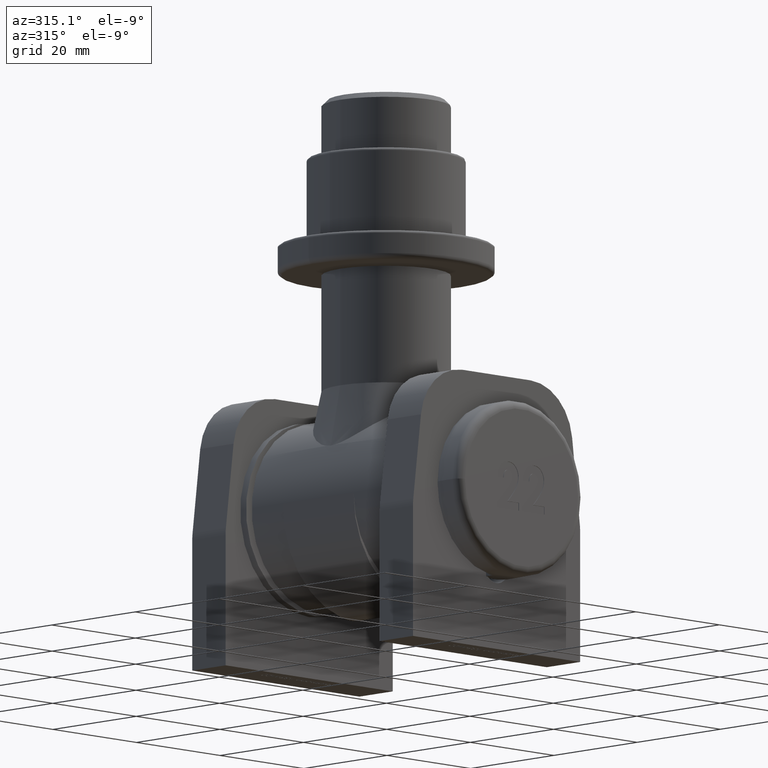
[diagram: clean part render]
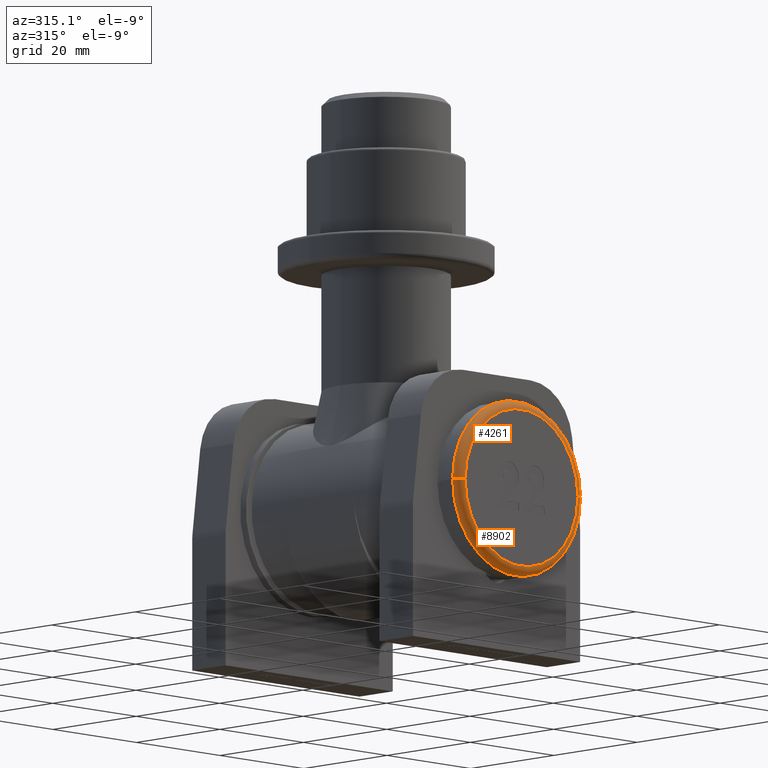
[diagram: same view with one multi-face feature highlighted, each face labeled with its STEP entity id]
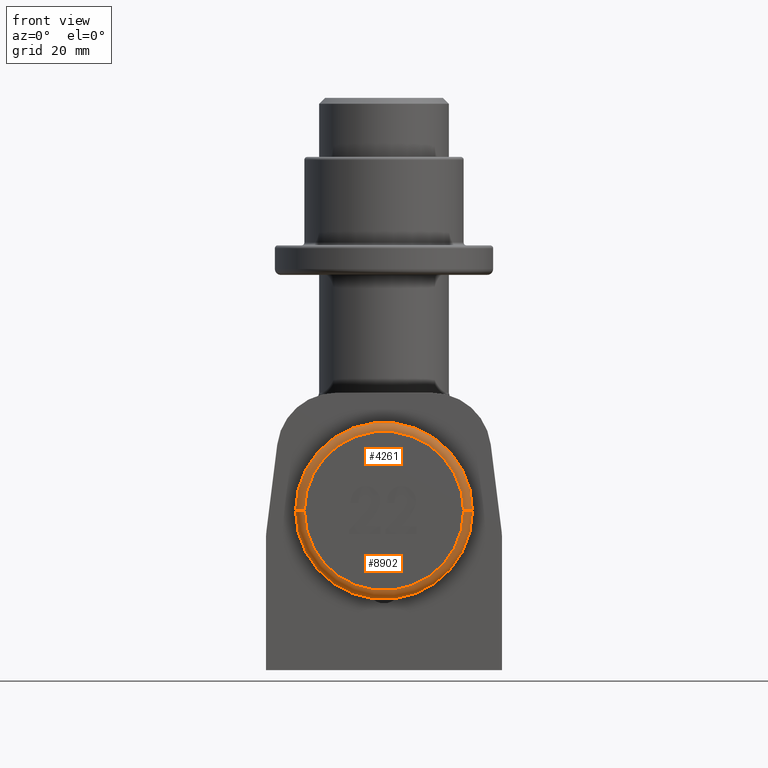
[diagram: same view with one multi-face feature highlighted, each face labeled with its STEP entity id]
A machine part, auxiliary view. The highlighted faces form ONE feature: a constant-radius fillet chain: 2 tangent blend faces with common blend radius 1.5 mm. The faces share edges in the B-rep.
A second angle (front view) of the same feature is appended — it is thin or edge-on in the first view.
Their STEP definitions:
[1] entity #4261 (Torus):
#254 = AXIS2_PLACEMENT_3D ( 'NONE', #7839, #8999, #12488 ) ;
#807 = ORIENTED_EDGE ( 'NONE', *, *, #2426, .F. ) ;
#1525 = EDGE_LOOP ( 'NONE', ( #807, #6957, #9973, #10988 ) ) ;
#1935 = DIRECTION ( 'NONE',  ( -1.000000000000000000, -2.891205793294678700E-017, 0.0000000000000000000 ) ) ;
#2145 = CARTESIAN_POINT ( 'NONE',  ( -13.50000000000000000, -4.469339477901285700E-016, 0.0000000000000000000 ) ) ;
#2426 = EDGE_CURVE ( 'NONE', #11631, #7710, #14692, .T. ) ;
#2567 = CIRCLE ( 'NONE', #14240, 15.00000000000000000 ) ;
#2589 = EDGE_CURVE ( 'NONE', #7710, #5391, #10555, .T. ) ;
#3607 = DIRECTION ( 'NONE',  ( -3.310621835482434500E-017, 1.000000000000000000, -0.0000000000000000000 ) ) ;
#3781 = TOROIDAL_SURFACE ( 'NONE', #15413, 13.50000000000000000, 1.500000000000000000 ) ;
#3820 = DIRECTION ( 'NONE',  ( 1.000000000000000000, 0.0000000000000000000, 1.224646799147354700E-016 ) ) ;
#3908 = VERTEX_POINT ( 'NONE', #14169 ) ;
#4251 = DIRECTION ( 'NONE',  ( 0.0000000000000000000, -0.0000000000000000000, -1.000000000000000000 ) ) ;
#4261 = ADVANCED_FACE ( 'NONE', ( #14068 ), #3781, .T. ) ;
#4310 = DIRECTION ( 'NONE',  ( -3.310621835482434500E-017, 1.000000000000000000, -0.0000000000000000000 ) ) ;
#5389 = EDGE_CURVE ( 'NONE', #11631, #3908, #15360, .T. ) ;
#5391 = VERTEX_POINT ( 'NONE', #11151 ) ;
#5572 = AXIS2_PLACEMENT_3D ( 'NONE', #6481, #9928, #3820 ) ;
#6481 = CARTESIAN_POINT ( 'NONE',  ( 13.50000000000000000, 1.500000000000001800, 1.653273178848926900E-015 ) ) ;
#6957 = ORIENTED_EDGE ( 'NONE', *, *, #5389, .T. ) ;
#7012 = CARTESIAN_POINT ( 'NONE',  ( -4.965932753223618500E-017, 1.500000000000001300, 0.0000000000000000000 ) ) ;
#7710 = VERTEX_POINT ( 'NONE', #2145 ) ;
#7839 = CARTESIAN_POINT ( 'NONE',  ( 3.791674578012370600E-031, 0.0000000000000000000, 0.0000000000000000000 ) ) ;
#8999 = DIRECTION ( 'NONE',  ( 3.310621835482434500E-017, -1.000000000000000000, 0.0000000000000000000 ) ) ;
#9322 = AXIS2_PLACEMENT_3D ( 'NONE', #11570, #4251, #12746 ) ;
#9928 = DIRECTION ( 'NONE',  ( -1.224646799147353200E-016, -4.054342434010898900E-033, 1.000000000000000000 ) ) ;
#9973 = ORIENTED_EDGE ( 'NONE', *, *, #11517, .F. ) ;
#10555 = CIRCLE ( 'NONE', #9322, 1.499999999999999600 ) ;
#10931 = DIRECTION ( 'NONE',  ( -1.000000000000000000, -3.310621835482434500E-017, 0.0000000000000000000 ) ) ;
#10988 = ORIENTED_EDGE ( 'NONE', *, *, #2589, .F. ) ;
#11151 = CARTESIAN_POINT ( 'NONE',  ( -15.00000000000000000, 1.500000000000000900, 0.0000000000000000000 ) ) ;
#11517 = EDGE_CURVE ( 'NONE', #5391, #3908, #2567, .T. ) ;
#11570 = CARTESIAN_POINT ( 'NONE',  ( -13.50000000000000000, 1.500000000000000900, 0.0000000000000000000 ) ) ;
#11631 = VERTEX_POINT ( 'NONE', #13438 ) ;
#12488 = DIRECTION ( 'NONE',  ( -1.000000000000000000, -3.310621835482433900E-017, 0.0000000000000000000 ) ) ;
#12746 = DIRECTION ( 'NONE',  ( -1.000000000000000000, 0.0000000000000000000, 0.0000000000000000000 ) ) ;
#13438 = CARTESIAN_POINT ( 'NONE',  ( 13.50000000000000000, 4.469339477901285700E-016, 1.745121688784978200E-015 ) ) ;
#14068 = FACE_OUTER_BOUND ( 'NONE', #1525, .T. ) ;
#14169 = CARTESIAN_POINT ( 'NONE',  ( 15.00000000000000000, 1.500000000000001800, 1.836970198721029600E-015 ) ) ;
#14240 = AXIS2_PLACEMENT_3D ( 'NONE', #7012, #4310, #1935 ) ;
#14692 = CIRCLE ( 'NONE', #254, 13.50000000000000000 ) ;
#15360 = CIRCLE ( 'NONE', #5572, 1.499999999999999600 ) ;
#15413 = AXIS2_PLACEMENT_3D ( 'NONE', #15536, #3607, #10931 ) ;
#15536 = CARTESIAN_POINT ( 'NONE',  ( -4.965932753223618500E-017, 1.500000000000001300, 0.0000000000000000000 ) ) ;
[2] entity #8902 (Torus):
#506 = ORIENTED_EDGE ( 'NONE', *, *, #15168, .F. ) ;
#1120 = CARTESIAN_POINT ( 'NONE',  ( 3.791674578012370600E-031, 0.0000000000000000000, 0.0000000000000000000 ) ) ;
#2145 = CARTESIAN_POINT ( 'NONE',  ( -13.50000000000000000, -4.469339477901285700E-016, 0.0000000000000000000 ) ) ;
#2208 = EDGE_CURVE ( 'NONE', #7710, #11631, #8623, .T. ) ;
#2216 = DIRECTION ( 'NONE',  ( -3.310621835482434500E-017, 1.000000000000000000, -0.0000000000000000000 ) ) ;
#2293 = ORIENTED_EDGE ( 'NONE', *, *, #5389, .F. ) ;
#2380 = DIRECTION ( 'NONE',  ( -1.000000000000000000, -3.310621835482433900E-017, 0.0000000000000000000 ) ) ;
#2589 = EDGE_CURVE ( 'NONE', #7710, #5391, #10555, .T. ) ;
#2699 = CIRCLE ( 'NONE', #3152, 15.00000000000000000 ) ;
#2890 = CARTESIAN_POINT ( 'NONE',  ( -4.965932753223618500E-017, 1.500000000000001300, 0.0000000000000000000 ) ) ;
#3152 = AXIS2_PLACEMENT_3D ( 'NONE', #14355, #2216, #10777 ) ;
#3820 = DIRECTION ( 'NONE',  ( 1.000000000000000000, 0.0000000000000000000, 1.224646799147354700E-016 ) ) ;
#3908 = VERTEX_POINT ( 'NONE', #14169 ) ;
#4085 = DIRECTION ( 'NONE',  ( -1.000000000000000000, -3.310621835482434500E-017, 0.0000000000000000000 ) ) ;
#4139 = DIRECTION ( 'NONE',  ( -3.310621835482434500E-017, 1.000000000000000000, -0.0000000000000000000 ) ) ;
#4251 = DIRECTION ( 'NONE',  ( 0.0000000000000000000, -0.0000000000000000000, -1.000000000000000000 ) ) ;
#4750 = ORIENTED_EDGE ( 'NONE', *, *, #2208, .F. ) ;
#5389 = EDGE_CURVE ( 'NONE', #11631, #3908, #15360, .T. ) ;
#5391 = VERTEX_POINT ( 'NONE', #11151 ) ;
#5572 = AXIS2_PLACEMENT_3D ( 'NONE', #6481, #9928, #3820 ) ;
#6481 = CARTESIAN_POINT ( 'NONE',  ( 13.50000000000000000, 1.500000000000001800, 1.653273178848926900E-015 ) ) ;
#7710 = VERTEX_POINT ( 'NONE', #2145 ) ;
#8501 = AXIS2_PLACEMENT_3D ( 'NONE', #1120, #11980, #2380 ) ;
#8623 = CIRCLE ( 'NONE', #8501, 13.50000000000000000 ) ;
#8902 = ADVANCED_FACE ( 'NONE', ( #14661 ), #13505, .T. ) ;
#9322 = AXIS2_PLACEMENT_3D ( 'NONE', #11570, #4251, #12746 ) ;
#9928 = DIRECTION ( 'NONE',  ( -1.224646799147353200E-016, -4.054342434010898900E-033, 1.000000000000000000 ) ) ;
#9972 = ORIENTED_EDGE ( 'NONE', *, *, #2589, .T. ) ;
#10555 = CIRCLE ( 'NONE', #9322, 1.499999999999999600 ) ;
#10777 = DIRECTION ( 'NONE',  ( -1.000000000000000000, -2.891205793294678700E-017, 0.0000000000000000000 ) ) ;
#11151 = CARTESIAN_POINT ( 'NONE',  ( -15.00000000000000000, 1.500000000000000900, 0.0000000000000000000 ) ) ;
#11570 = CARTESIAN_POINT ( 'NONE',  ( -13.50000000000000000, 1.500000000000000900, 0.0000000000000000000 ) ) ;
#11631 = VERTEX_POINT ( 'NONE', #13438 ) ;
#11980 = DIRECTION ( 'NONE',  ( 3.310621835482434500E-017, -1.000000000000000000, 0.0000000000000000000 ) ) ;
#12746 = DIRECTION ( 'NONE',  ( -1.000000000000000000, 0.0000000000000000000, 0.0000000000000000000 ) ) ;
#13254 = EDGE_LOOP ( 'NONE', ( #2293, #4750, #9972, #506 ) ) ;
#13438 = CARTESIAN_POINT ( 'NONE',  ( 13.50000000000000000, 4.469339477901285700E-016, 1.745121688784978200E-015 ) ) ;
#13505 = TOROIDAL_SURFACE ( 'NONE', #15351, 13.50000000000000000, 1.500000000000000000 ) ;
#14169 = CARTESIAN_POINT ( 'NONE',  ( 15.00000000000000000, 1.500000000000001800, 1.836970198721029600E-015 ) ) ;
#14355 = CARTESIAN_POINT ( 'NONE',  ( -4.965932753223618500E-017, 1.500000000000001300, 0.0000000000000000000 ) ) ;
#14661 = FACE_OUTER_BOUND ( 'NONE', #13254, .T. ) ;
#15168 = EDGE_CURVE ( 'NONE', #3908, #5391, #2699, .T. ) ;
#15351 = AXIS2_PLACEMENT_3D ( 'NONE', #2890, #4139, #4085 ) ;
#15360 = CIRCLE ( 'NONE', #5572, 1.499999999999999600 ) ;